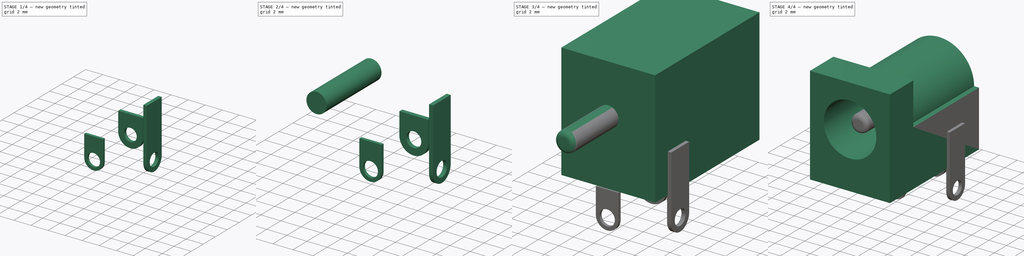
[diagram: build sequence overview — one tinted view per stage of 4, left to right]
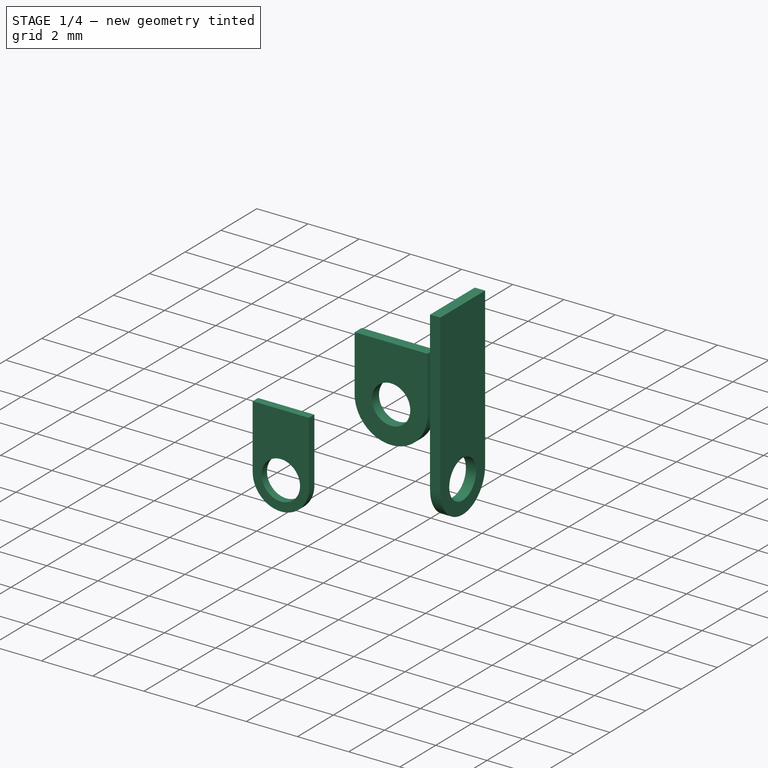
[diagram: stage 1 of 4 — iso view after this stage's code; geometry added in this stage tinted green]
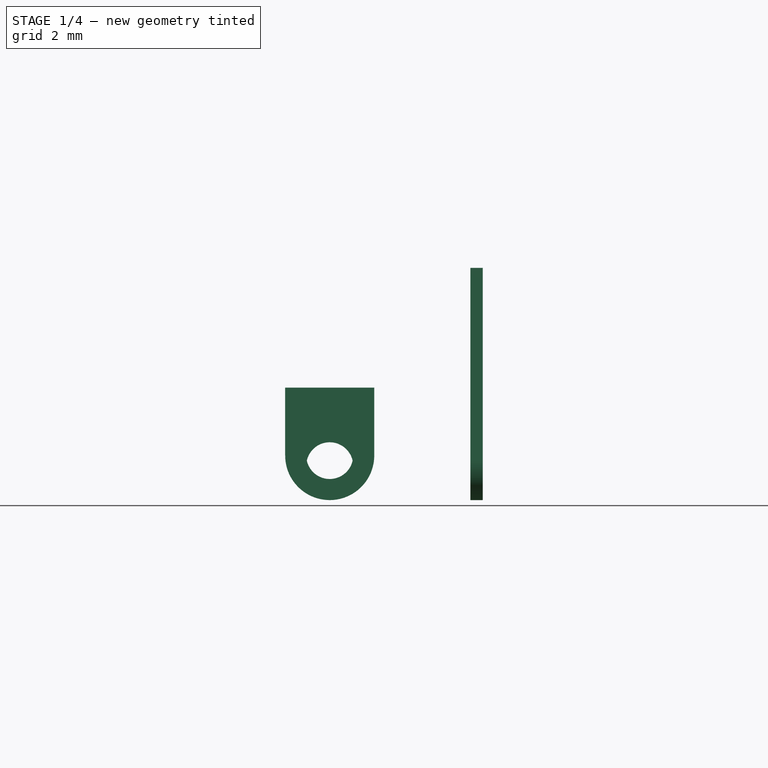
[diagram: stage 1 of 4 — front view after this stage's code; geometry added in this stage tinted green]
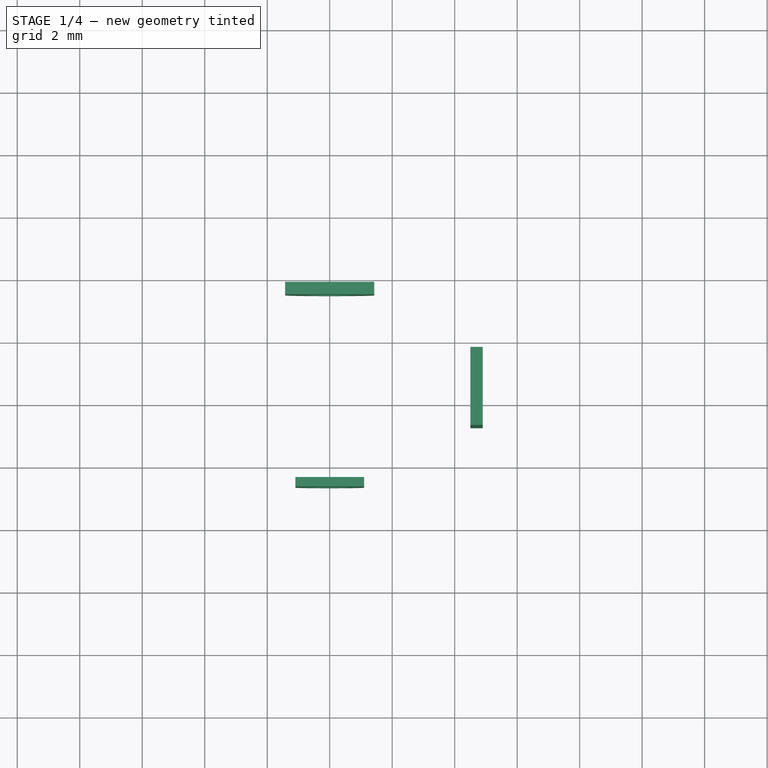
[diagram: stage 1 of 4 — top view after this stage's code; geometry added in this stage tinted green]
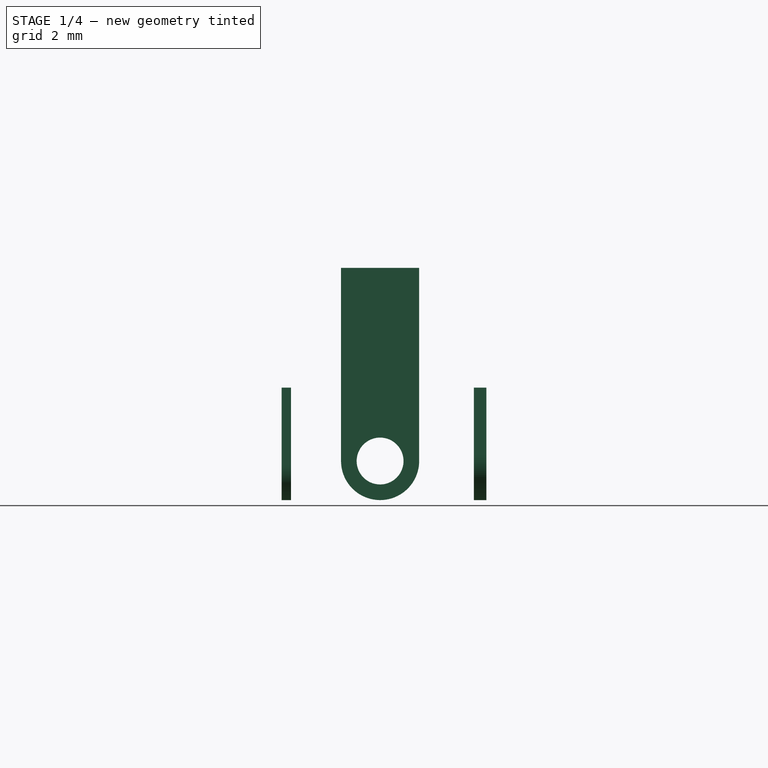
[diagram: stage 1 of 4 — right view after this stage's code; geometry added in this stage tinted green]
FCSTD DOCUMENT  (FreeCAD 0.16R6703 (Git))
Label: jack_DC_2.1mm_PCB
License: CC-BY 3.0
LicenseURL: http://creativecommons.org/licenses/by/3.0/
objects: Sketcher::SketchObject×7, PartDesign::Pad×5, Part::FeaturePython×3, PartDesign::Pocket×2, Part::Fillet×1, Part::MultiFuse×1, App::DocumentObjectGroup×1
note: 26 computed .brp shape members not serialized (recipe doc carries the construction recipe); baked Part::Feature solids carry a one-line shape summary decoded from their .brp

FEATURE [Sketcher::SketchObject] Sketch010  label="front-pin-sketch"
  Placement = pos=(0,7.65,0) rot=(-1,0,0;4.71239rad)
  sketch-geometry (6):
    g0: LineSegment StartX=-1.1 StartY=0 StartZ=0 EndX=1.1 EndY=0 EndZ=0
    g1: LineSegment StartX=1.1 StartY=0 StartZ=0 EndX=1.1 EndY=-2.5 EndZ=0
    g2: LineSegment [constr] StartX=1.1 StartY=-2.5 StartZ=0 EndX=-1.1 EndY=-2.5 EndZ=0
    g3: LineSegment StartX=-1.1 StartY=-2.5 StartZ=0 EndX=-1.1 EndY=0 EndZ=0
    g4: ArcOfCircle CenterX=0 CenterY=-2.5 CenterZ=0 NormalX=0 NormalY=0 NormalZ=1 Radius=1.1 StartAngle=3.14159 EndAngle=6.28319
    g5: Circle CenterX=0 CenterY=-2.5 CenterZ=0 NormalX=0 NormalY=0 NormalZ=1 Radius=0.75
  constraints (17):
    c: Coincident(g0,g1)
    c: Coincident(g1,g2)
    c: Coincident(g2,g3)
    c: Coincident(g3,g0)
    c: Horizontal(g0)
    c: Horizontal(g2)
    c: Vertical(g1)
    c: Vertical(g3)
    c: PointOnObject(g0,g-1)
    c: Symmetric(g0,g0,g-2)
    c: Coincident(g4,g2)
    c: Coincident(g4,g1)
    c: PointOnObject(g4,g2)
    c: DistanceY(g1,g1) = 2.5
    c: DistanceX(g0,g0) = 2.2
    c: Coincident(g5,g4)
    c: Radius(g5) = 0.75
FEATURE [PartDesign::Pad] Pad006  label="front-pin-src"
  Length = 0.3
  Length2 = 100
  Placement = pos=(0,7.65,0) rot=(-1,0,0;4.71239rad)
  Sketch = -> Sketch010
  Type = 0
FEATURE [Sketcher::SketchObject] Sketch011  label="rear-pin-sketch001"
  Placement = pos=(0,13.9,0) rot=(-1,0,0;4.71239rad)
  sketch-geometry (6):
    g0: LineSegment StartX=-1.425 StartY=0 StartZ=0 EndX=1.425 EndY=0 EndZ=0
    g1: LineSegment StartX=1.425 StartY=0 StartZ=0 EndX=1.425 EndY=-2.175 EndZ=0
    g2: LineSegment [constr] StartX=1.425 StartY=-2.175 StartZ=0 EndX=-1.425 EndY=-2.175 EndZ=0
    g3: LineSegment StartX=-1.425 StartY=-2.175 StartZ=0 EndX=-1.425 EndY=0 EndZ=0
    g4: ArcOfCircle CenterX=0 CenterY=-2.175 CenterZ=0 NormalX=0 NormalY=0 NormalZ=1 Radius=1.425 StartAngle=3.14159 EndAngle=6.28319
    g5: Circle CenterX=0 CenterY=-2.175 CenterZ=0 NormalX=0 NormalY=0 NormalZ=1 Radius=0.75
  constraints (17):
    c: Coincident(g0,g1)
    c: Coincident(g1,g2)
    c: Coincident(g2,g3)
    c: Coincident(g3,g0)
    c: Horizontal(g0)
    c: Horizontal(g2)
    c: Vertical(g1)
    c: Vertical(g3)
    c: Symmetric(g0,g0,g-2)
    c: PointOnObject(g-1,g0)
    c: DistanceX(g0,g0) = 2.85
    c: DistanceY(g1,g1) = 2.175
    c: PointOnObject(g4,g2)
    c: Coincident(g4,g2)
    c: Coincident(g4,g1)
    c: Coincident(g5,g4)
    c: Radius(g5) = 0.75
FEATURE [PartDesign::Pad] Pad007  label="rear-pin-src"
  Length = 0.4
  Length2 = 100
  Placement = pos=(0,13.9,0) rot=(-1,0,0;4.71239rad)
  Sketch = -> Sketch011
  Type = 0
FEATURE [Sketcher::SketchObject] Sketch012  label="right-pin-sketch001"
  Placement = pos=(4.5,10.5,3.83) rot=(0.57735,0.57735,0.57735;2.0944rad)
  sketch-geometry (6):
    g0: LineSegment StartX=-1.25 StartY=0 StartZ=0 EndX=1.25 EndY=0 EndZ=0
    g1: LineSegment StartX=1.25 StartY=0 StartZ=0 EndX=1.25 EndY=-6.18 EndZ=0
    g2: LineSegment [constr] StartX=1.25 StartY=-6.18 StartZ=0 EndX=-1.25 EndY=-6.18 EndZ=0
    g3: LineSegment StartX=-1.25 StartY=-6.18 StartZ=0 EndX=-1.25 EndY=0 EndZ=0
    g4: ArcOfCircle CenterX=0 CenterY=-6.18 CenterZ=0 NormalX=0 NormalY=0 NormalZ=1 Radius=1.25 StartAngle=3.14159 EndAngle=6.28319
    g5: Circle CenterX=0 CenterY=-6.18 CenterZ=0 NormalX=0 NormalY=0 NormalZ=1 Radius=0.75
  constraints (17):
    c: Coincident(g0,g1)
    c: Coincident(g1,g2)
    c: Coincident(g2,g3)
    c: Coincident(g3,g0)
    c: Horizontal(g0)
    c: Horizontal(g2)
    c: Vertical(g1)
    c: Vertical(g3)
    c: PointOnObject(g4,g2)
    c: Coincident(g4,g2)
    c: Coincident(g4,g1)
    c: PointOnObject(g0,g-1)
    c: Symmetric(g0,g0,g-2)
    c: DistanceX(g0,g0) = 2.5
    c: DistanceY(g1,g1) = 6.18
    c: Coincident(g5,g4)
    c: Radius(g5) = 0.75
FEATURE [PartDesign::Pad] Pad008  label="right-pin-src"
  Length = 0.4
  Length2 = 100
  Placement = pos=(4.5,10.5,3.83) rot=(0.57735,0.57735,0.57735;2.0944rad)
  Sketch = -> Sketch012
  Type = 0
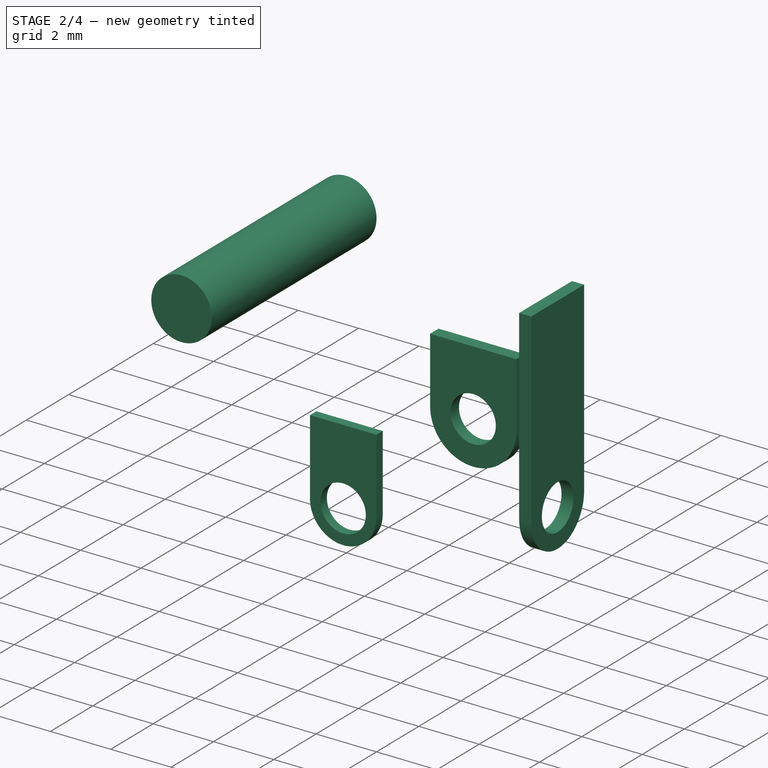
[diagram: stage 2 of 4 — iso view after this stage's code; geometry added in this stage tinted green]
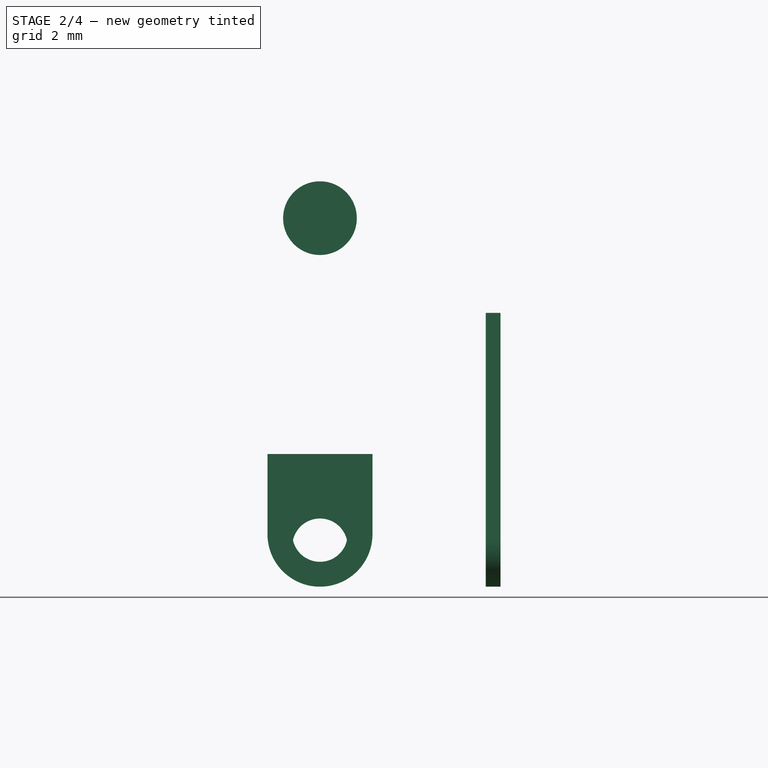
[diagram: stage 2 of 4 — front view after this stage's code; geometry added in this stage tinted green]
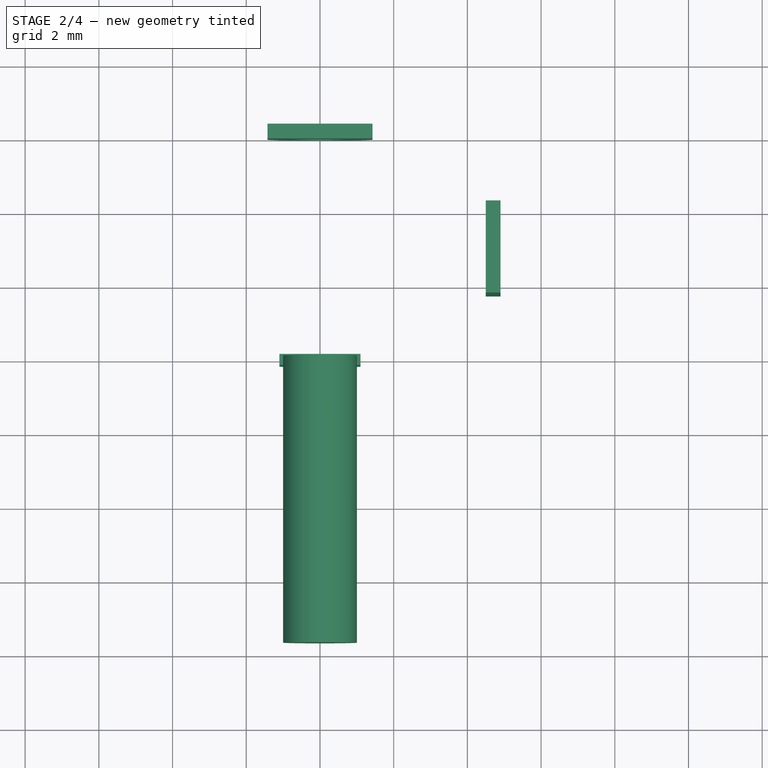
[diagram: stage 2 of 4 — top view after this stage's code; geometry added in this stage tinted green]
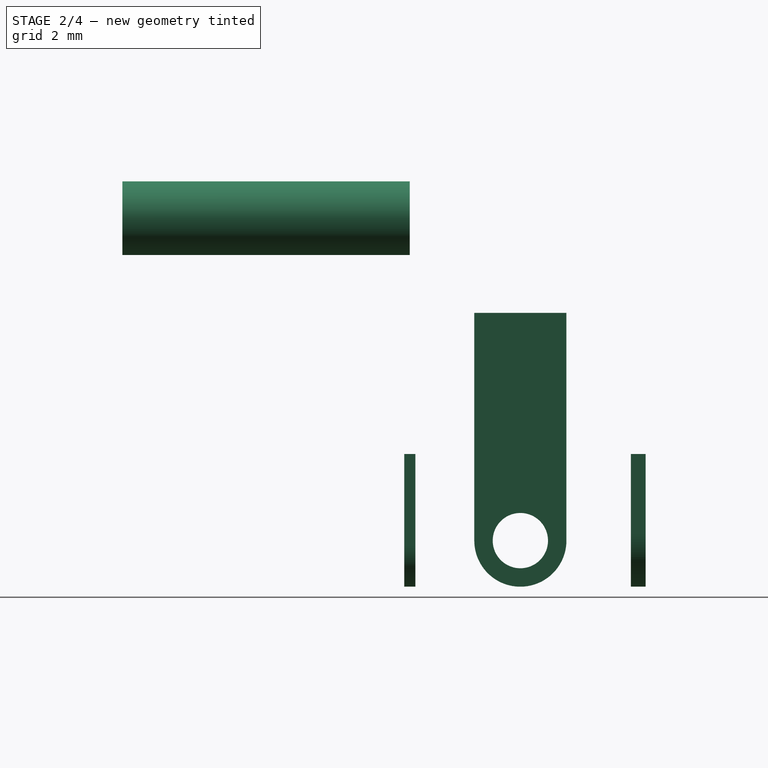
[diagram: stage 2 of 4 — right view after this stage's code; geometry added in this stage tinted green]
FEATURE [Sketcher::SketchObject] Sketch  label="core-sketch"
  Placement = pos=(0,0,0) rot=(-1,0,0;4.71239rad)
  sketch-geometry (1):
    g0: Circle CenterX=0 CenterY=6.4 CenterZ=0 NormalX=0 NormalY=0 NormalZ=1 Radius=1
  constraints (3):
    c: PointOnObject(g0,g-2)
    c: Radius(g0) = 1
    c: DistanceY(g-1,g0) = 6.4
FEATURE [PartDesign::Pad] Pad  label="core-1"
  Length = 7.8
  Length2 = 100
  Placement = pos=(0,0,0) rot=(-1,0,0;4.71239rad)
  Sketch = -> Sketch
  Type = 0
FEATURE [Part::MultiFuse] Fusion  label="pins-src"
  Shapes = -> [Pad006,Pad008,Pad007]
FEATURE [App::DocumentObjectGroup] Group001  label="src"
  Group = -> [Pad005,Pocket002,Pocket003,Fillet,Fusion]
FEATURE [Part::FeaturePython] Clone002  label="pins"  # Draft clone (typed FeaturePython)
  Objects = -> [Fusion]
  Placement = pos=(0,-7.5,0) rot=(0,0,1;0rad)
  Scale = (1,1,1)
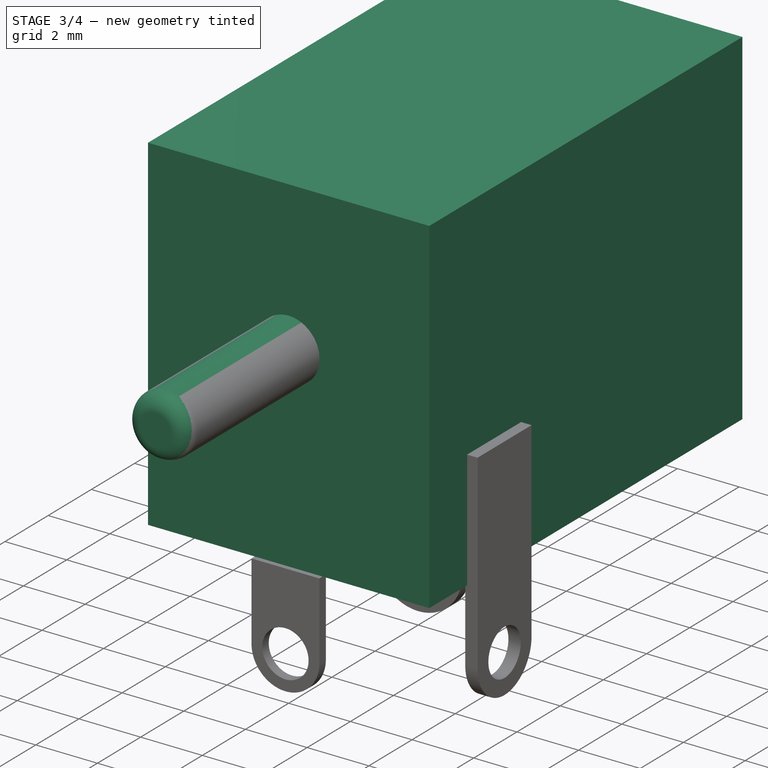
[diagram: stage 3 of 4 — iso view after this stage's code; geometry added in this stage tinted green]
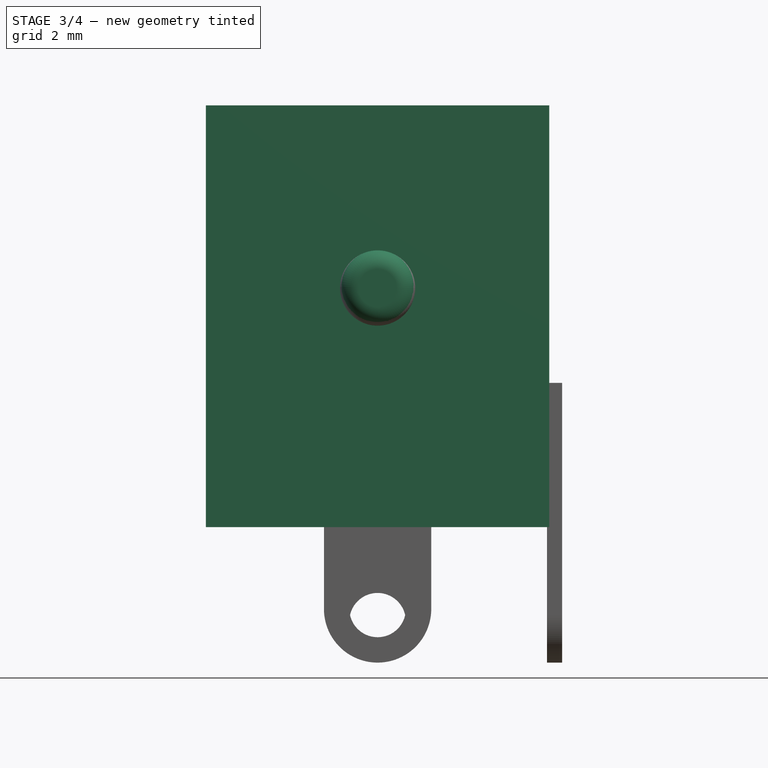
[diagram: stage 3 of 4 — front view after this stage's code; geometry added in this stage tinted green]
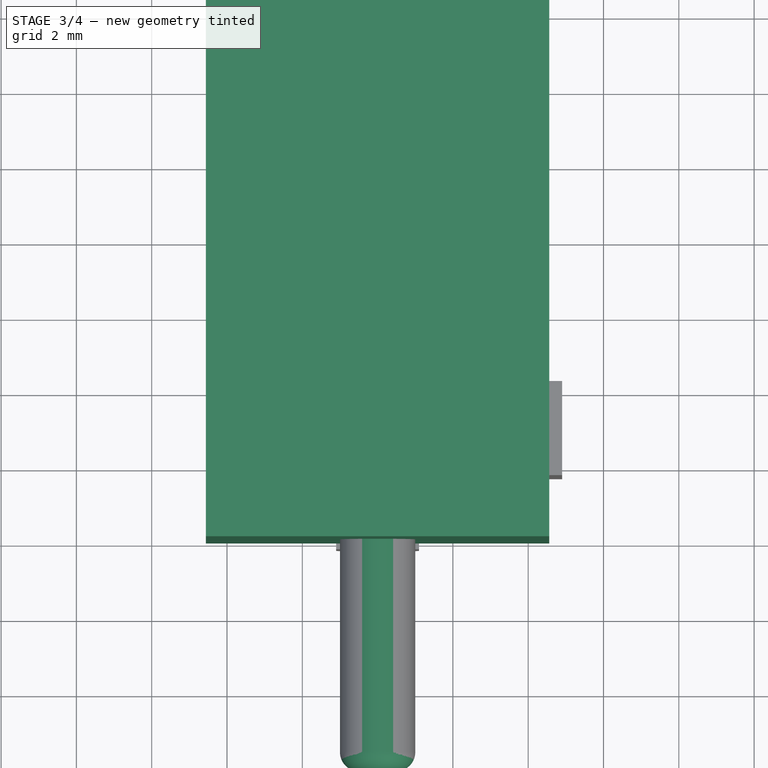
[diagram: stage 3 of 4 — top view after this stage's code; geometry added in this stage tinted green]
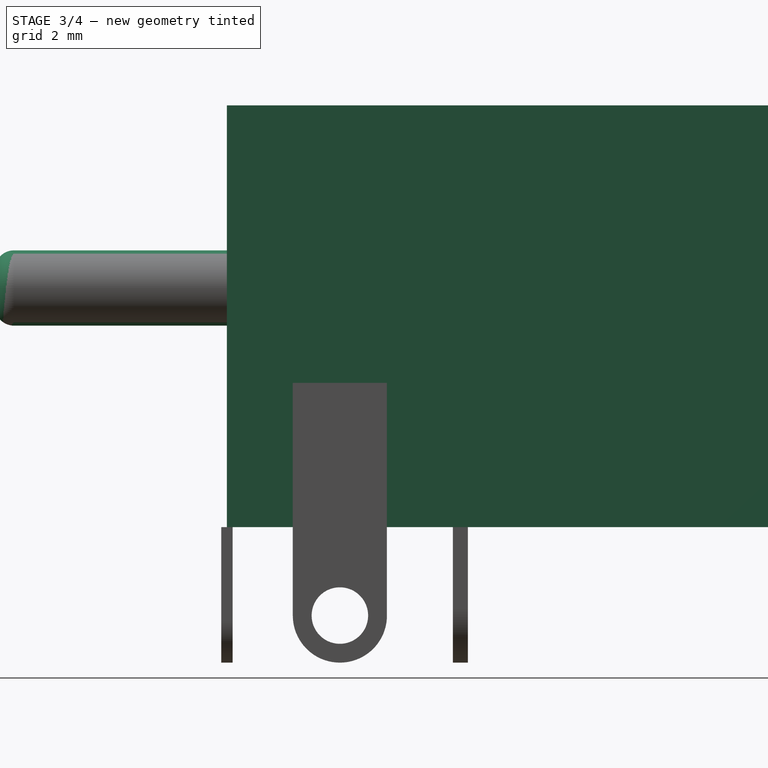
[diagram: stage 3 of 4 — right view after this stage's code; geometry added in this stage tinted green]
FEATURE [Sketcher::SketchObject] Sketch007  label="body-1-sketch"
  Placement = pos=(0,0,0) rot=(-1,0,0;4.71239rad)
  sketch-geometry (4):
    g0: LineSegment StartX=-4.56 StartY=11.2 StartZ=0 EndX=4.56 EndY=11.2 EndZ=0
    g1: LineSegment StartX=4.56 StartY=11.2 StartZ=0 EndX=4.56 EndY=0 EndZ=0
    g2: LineSegment StartX=4.56 StartY=0 StartZ=0 EndX=-4.56 EndY=0 EndZ=0
    g3: LineSegment StartX=-4.56 StartY=0 StartZ=0 EndX=-4.56 EndY=11.2 EndZ=0
  constraints (12):
    c: Coincident(g0,g1)
    c: Coincident(g1,g2)
    c: Coincident(g2,g3)
    c: Coincident(g3,g0)
    c: Horizontal(g0)
    c: Horizontal(g2)
    c: Vertical(g1)
    c: Vertical(g3)
    c: PointOnObject(g1,g-1)
    c: Symmetric(g0,g0,g-2)
    c: DistanceX(g0,g0) = 9.12
    c: DistanceY(g1,g1) = 11.2
FEATURE [PartDesign::Pad] Pad005  label="body-1"
  Length = 14.5
  Length2 = 100
  Placement = pos=(0,0,0) rot=(-1,0,0;4.71239rad)
  Reversed = true
  Sketch = -> Sketch007
  Type = 0
FEATURE [Part::Fillet] Fillet  label="core-2"
  Base = -> Pad
  Edges = 1 edges r=0.5: [Edge3]
  Placement = pos=(0,9.144,-0.05) rot=(0,0,1;0rad)
FEATURE [Part::FeaturePython] Clone001  label="core"  # Draft clone (typed FeaturePython)
  Objects = -> [Fillet]
  Placement = pos=(0,1.644,-0.05) rot=(0,0,1;0rad)
  Scale = (1,1,1)
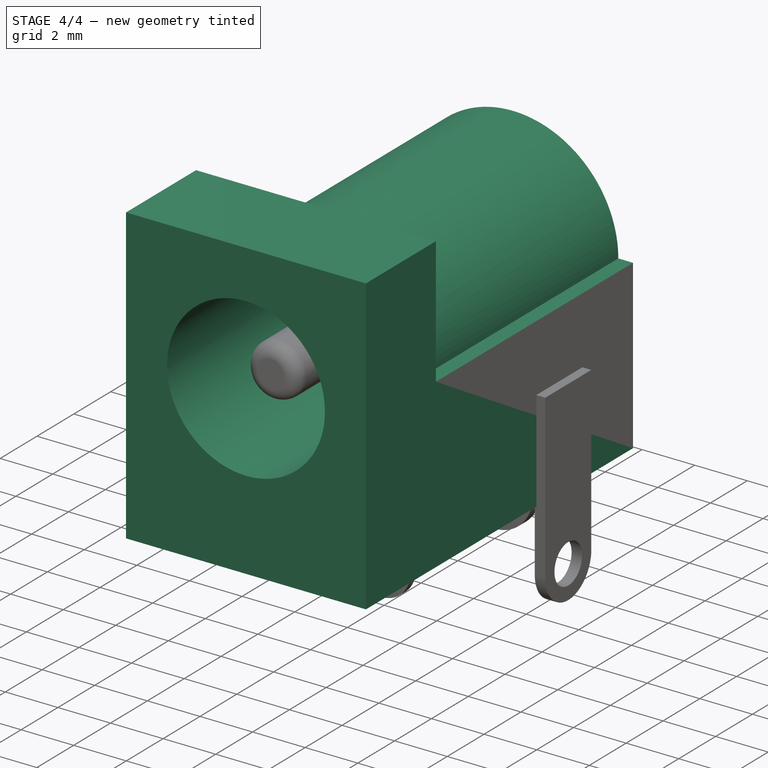
[diagram: stage 4 of 4 — iso view after this stage's code; geometry added in this stage tinted green]
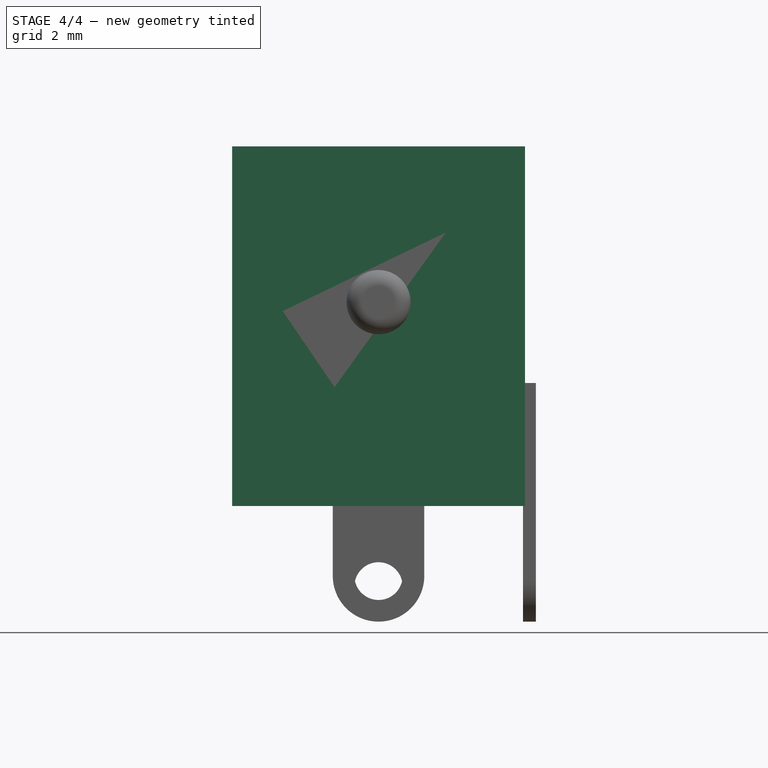
[diagram: stage 4 of 4 — front view after this stage's code; geometry added in this stage tinted green]
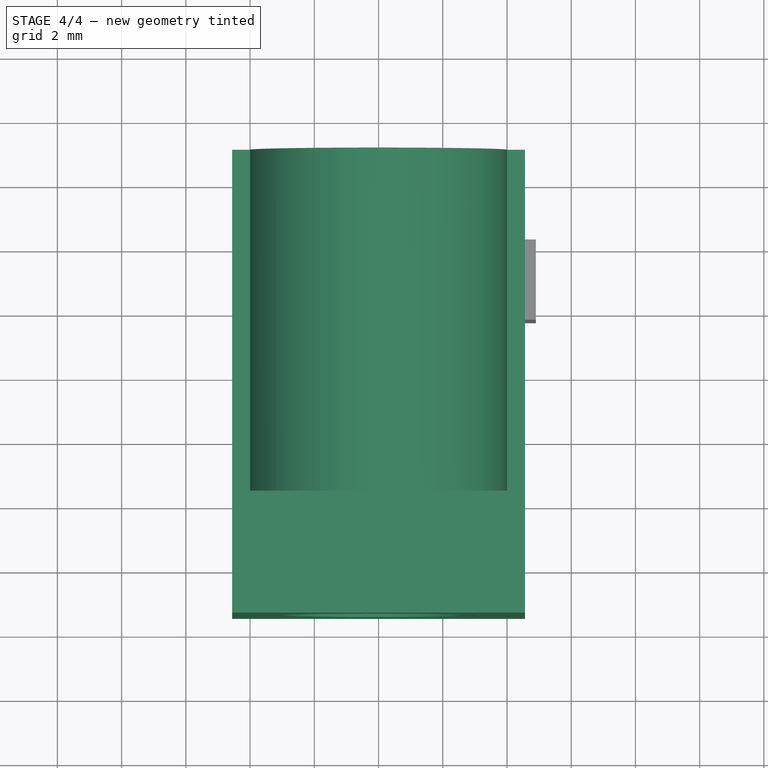
[diagram: stage 4 of 4 — top view after this stage's code; geometry added in this stage tinted green]
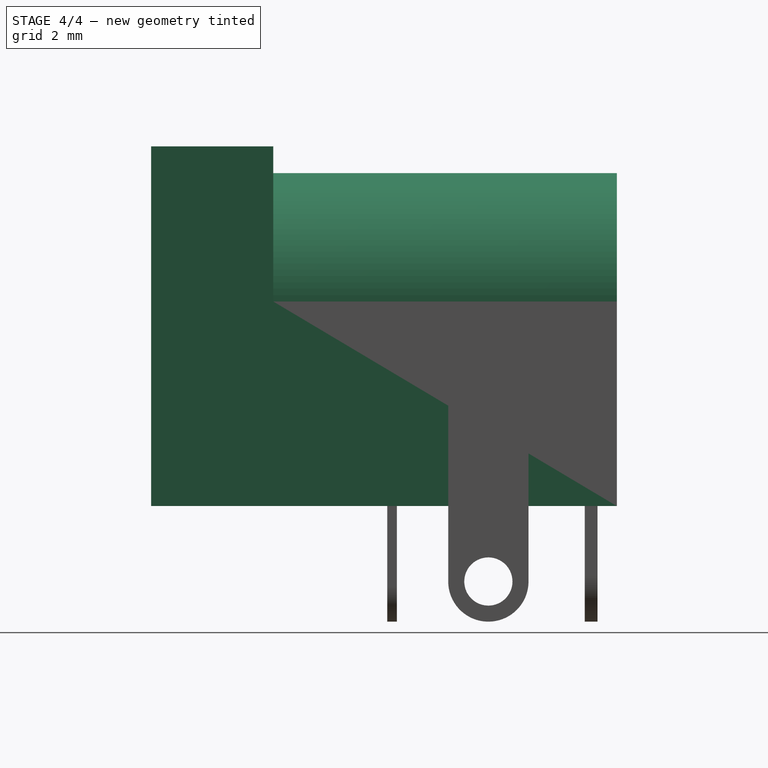
[diagram: stage 4 of 4 — right view after this stage's code; geometry added in this stage tinted green]
FEATURE [Sketcher::SketchObject] Sketch008  label="body-2-sketch"
  ExternalGeometry = -> [Pad005]
  Placement = pos=(0,14.5,0) rot=(-1,0,0;1.5708rad)
  Support = -> Pad005 [Face6]
  sketch-geometry (6):
    g0: LineSegment StartX=4 StartY=-6.37 StartZ=0 EndX=4.56 EndY=-6.37 EndZ=0
    g1: LineSegment StartX=4.56 StartY=-6.37 StartZ=0 EndX=4.56 EndY=-11.2 EndZ=0
    g2: LineSegment StartX=4.56 StartY=-11.2 StartZ=0 EndX=-4.56 EndY=-11.2 EndZ=0
    g3: LineSegment StartX=-4.56 StartY=-11.2 StartZ=0 EndX=-4.56 EndY=-6.37 EndZ=0
    g4: LineSegment StartX=-4.56 StartY=-6.37 StartZ=0 EndX=-4 EndY=-6.37 EndZ=0
    g5: ArcOfCircle CenterX=0 CenterY=-6.37 CenterZ=0 NormalX=0 NormalY=0 NormalZ=1 Radius=4 StartAngle=3.14159 EndAngle=6.28319
  constraints (18):
    c: Horizontal(g0)
    c: Coincident(g0,g1)
    c: Vertical(g1)
    c: Coincident(g1,g2)
    c: Horizontal(g2)
    c: Coincident(g2,g3)
    c: Vertical(g3)
    c: Coincident(g3,g4)
    c: Horizontal(g4)
    c: Coincident(g2,g-3)
    c: Coincident(g1,g-3)
    c: DistanceY(g1,g1) = 4.83
    c: PointOnObject(g5,g0)
    c: Coincident(g5,g0)
    c: PointOnObject(g5,g4)
    c: Coincident(g5,g4)
    c: PointOnObject(g5,g-2)
    c: Radius(g5) = 4
FEATURE [PartDesign::Pocket] Pocket002  label="body-012"
  Length = 10.7
  Placement = pos=(0,0,0) rot=(-1,0,0;4.71239rad)
  Sketch = -> Sketch008
  Type = 0
FEATURE [Sketcher::SketchObject] Sketch009  label="body-3-sketch"
  ExternalGeometry = -> [Pocket002]
  Placement = pos=(0,0,0) rot=(1,0,0;1.5708rad)
  Support = -> Pocket002 [Face2]
  sketch-geometry (1):
    g0: Circle CenterX=0 CenterY=6.37 CenterZ=0 NormalX=0 NormalY=0 NormalZ=1 Radius=3
  constraints (3):
    c: PointOnObject(g0,g-2)
    c: Radius(g0) = 3
    c: PointOnObject(g0,g-3)
FEATURE [PartDesign::Pocket] Pocket003  label="body-3"
  Length = 9.1
  Placement = pos=(0,0,0) rot=(-1,0,0;4.71239rad)
  Sketch = -> Sketch009
  Type = 0
FEATURE [Part::FeaturePython] Clone  label="body"  # Draft clone (typed FeaturePython)
  Objects = -> [Pocket003]
  Placement = pos=(0,-7.5,0) rot=(-1,0,0;4.71239rad)
  Scale = (1,1,1)
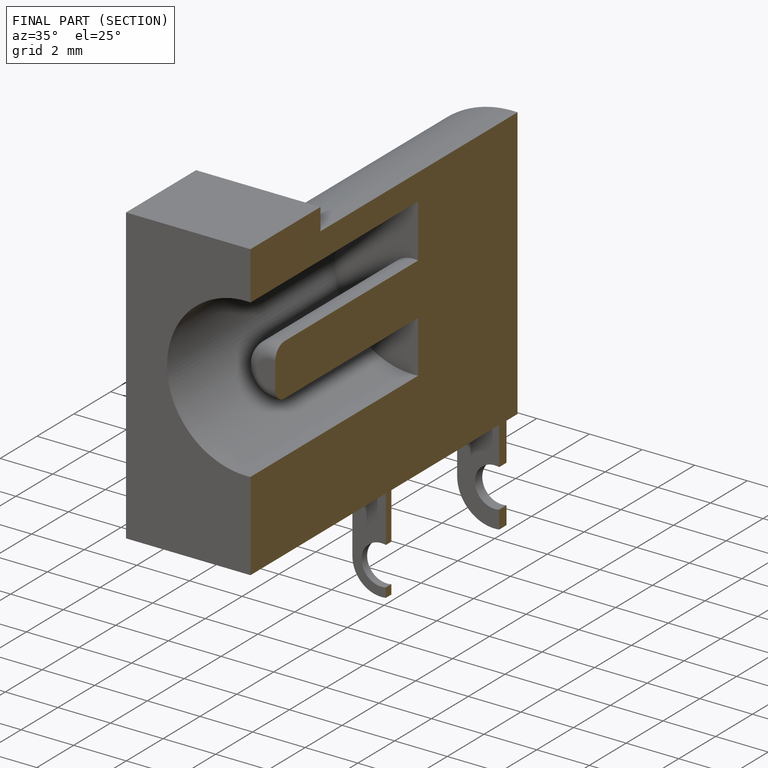
[diagram: finished part — half-section view (interior)]
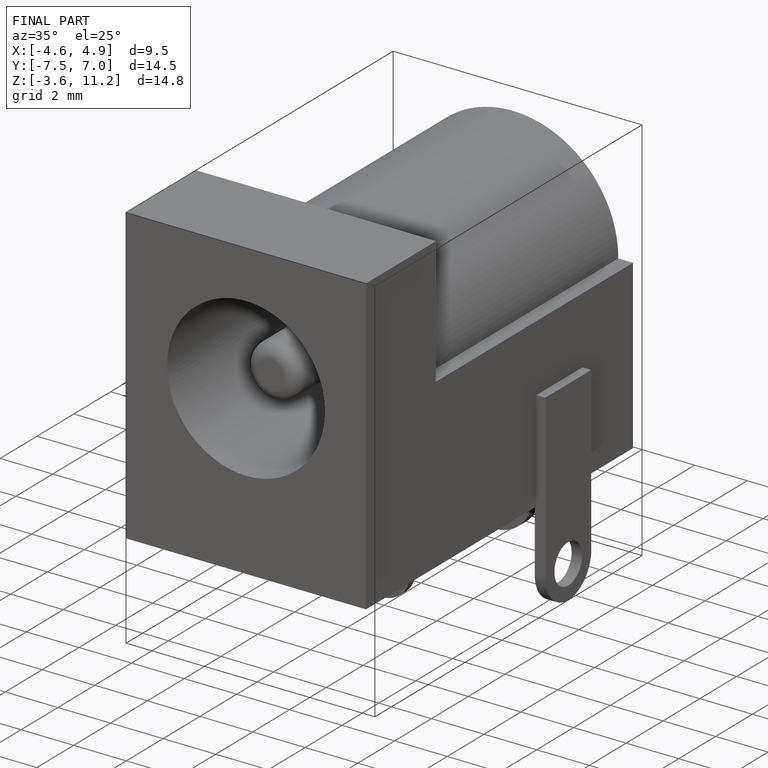
[diagram: finished part — iso view with bounding-box wireframe]
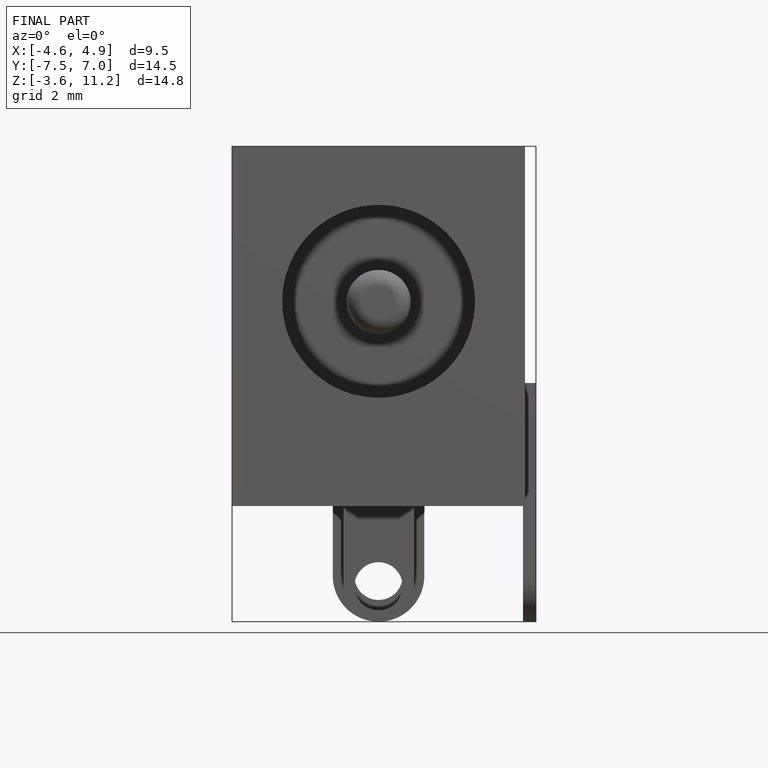
[diagram: finished part — front view with bounding-box wireframe]
